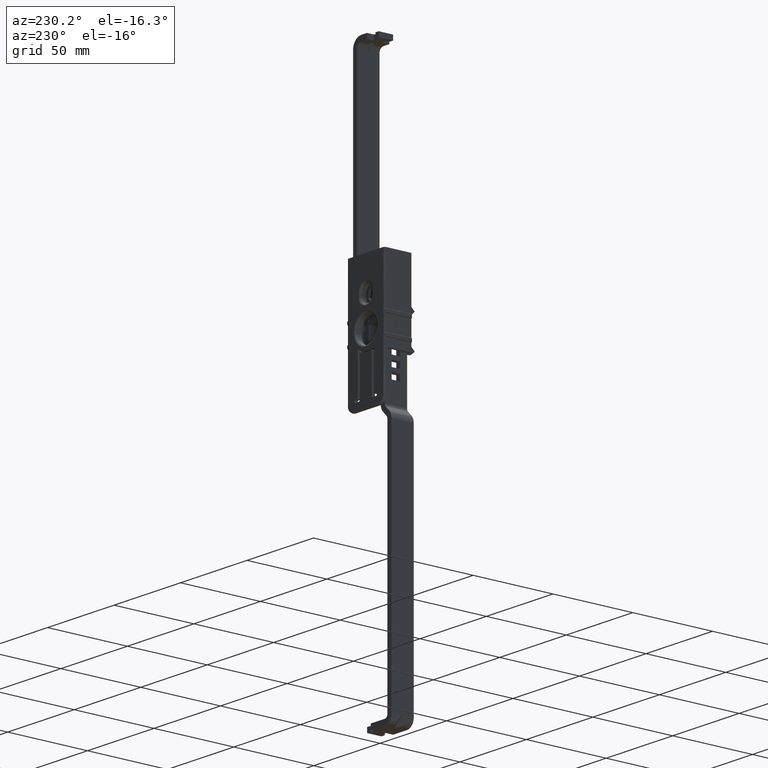
[diagram: clean part render]
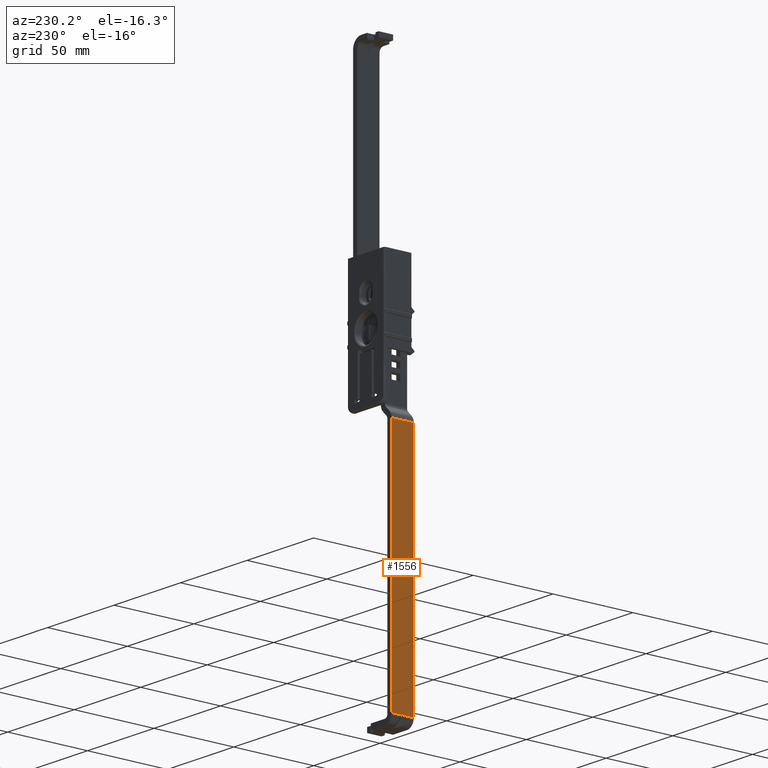
[diagram: same view with one face highlighted and labeled with its STEP entity id]
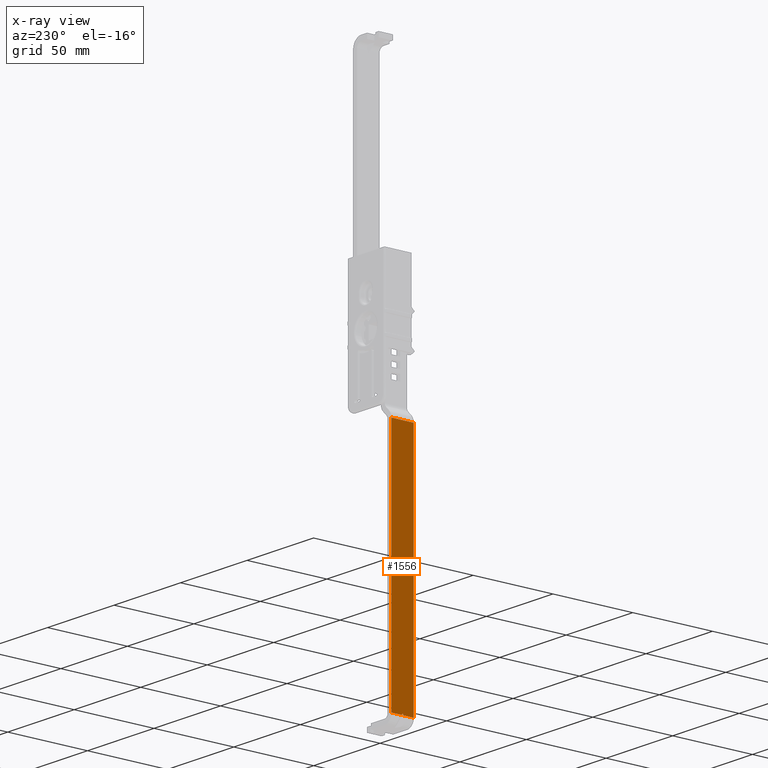
[diagram: x-ray of the same camera — body ghosted, the highlighted face saturated]
A machine part, auxiliary view. The second image highlights one B-rep face of the part: STEP entity #1556.
The next image is the same camera in x-ray: the body ghosted, the highlighted face saturated — about 0% of this face is hidden behind the body in this view.
In plain terms, the highlighted face is a freeform B-spline surface patch.
Its self-contained STEP definition (entity closure, byte-faithful):
#289=CARTESIAN_POINT('',(-16.900000421237451,0.0,-195.236172474243490));
#290=VERTEX_POINT('',#289);
#291=CARTESIAN_POINT('',(-16.899992590807550,-0.540112410842590,-196.000014601292490));
#292=VERTEX_POINT('',#291);
#293=CARTESIAN_POINT('',(-16.900000421237451,0.0,-195.236172474243490));
#294=CARTESIAN_POINT('',(-16.899992590807550,-0.540112410842590,-196.000014601292490));
#295=QUASI_UNIFORM_CURVE('',1,(#293,#294),.UNSPECIFIED.,.F.,.U.);
#296=EDGE_CURVE('',#290,#292,#295,.T.);
#335=CARTESIAN_POINT('',(-16.899992590807550,0.540112410842589,-196.000014601292490));
#336=VERTEX_POINT('',#335);
#337=CARTESIAN_POINT('',(-16.900000421237451,0.0,-195.236172474243490));
#338=CARTESIAN_POINT('',(-16.899992590807550,0.540112410842589,-196.000014601292490));
#339=QUASI_UNIFORM_CURVE('',1,(#337,#338),.UNSPECIFIED.,.F.,.U.);
#340=EDGE_CURVE('',#290,#336,#339,.T.);
#1115=CARTESIAN_POINT('',(-16.900000421237401,-7.000000332482050,-48.035538869087787));
#1116=VERTEX_POINT('',#1115);
#1130=CARTESIAN_POINT('',(-16.900000421237401,-7.000000332482050,-196.000011991122990));
#1131=VERTEX_POINT('',#1130);
#1132=CARTESIAN_POINT('',(-16.900000421237401,-7.000000332482050,-48.035538869087787));
#1133=CARTESIAN_POINT('',(-16.900000421237401,-7.000000332482050,-196.000011991122990));
#1134=QUASI_UNIFORM_CURVE('',1,(#1132,#1133),.UNSPECIFIED.,.F.,.U.);
#1135=EDGE_CURVE('',#1116,#1131,#1134,.T.);
#1170=CARTESIAN_POINT('',(-16.900000421237401,7.000000332482160,-196.000011991122990));
#1171=VERTEX_POINT('',#1170);
#1183=CARTESIAN_POINT('',(-16.900000421237401,7.000000332482160,-48.035538869087787));
#1184=VERTEX_POINT('',#1183);
#1185=CARTESIAN_POINT('',(-16.900000421237401,7.000000332482160,-48.035538869087787));
#1186=CARTESIAN_POINT('',(-16.900000421237401,7.000000332482160,-196.000011991122990));
#1187=QUASI_UNIFORM_CURVE('',1,(#1185,#1186),.UNSPECIFIED.,.F.,.U.);
#1188=EDGE_CURVE('',#1184,#1171,#1187,.T.);
#1524=CARTESIAN_POINT('',(-16.900000421237401,7.000000332482160,-196.000011991122990));
#1525=CARTESIAN_POINT('',(-16.899992590807550,0.540112410842589,-196.000014601292490));
#1526=QUASI_UNIFORM_CURVE('',1,(#1524,#1525),.UNSPECIFIED.,.F.,.U.);
#1527=EDGE_CURVE('',#1171,#336,#1526,.T.);
#1534=CARTESIAN_POINT('',(-16.900000421237401,7.699300338562406,-203.390839877332210));
#1535=CARTESIAN_POINT('',(-16.900000421237401,7.699300338562406,-40.644709624331533));
#1536=CARTESIAN_POINT('',(-16.900000421237401,-7.699300714071575,-203.390839877332210));
#1537=CARTESIAN_POINT('',(-16.900000421237401,-7.699300714071575,-40.644709624331533));
#1538=B_SPLINE_SURFACE_WITH_KNOTS('',1,1,((#1534,#1536),(#1535,#1537)),.UNSPECIFIED.,.F.,.F.,.U.,(2,2),(2,2),(0.0,162.746130253000700),(0.0,15.398601052633980),.UNSPECIFIED.);
#1539=ORIENTED_EDGE('',*,*,#296,.T.);
#1540=CARTESIAN_POINT('',(-16.899992590807550,-0.540112410842590,-196.000014601292490));
#1541=CARTESIAN_POINT('',(-16.900000421237401,-7.000000332482050,-196.000011991122990));
#1542=QUASI_UNIFORM_CURVE('',1,(#1540,#1541),.UNSPECIFIED.,.F.,.U.);
#1543=EDGE_CURVE('',#292,#1131,#1542,.T.);
#1544=ORIENTED_EDGE('',*,*,#1543,.T.);
#1545=ORIENTED_EDGE('',*,*,#1135,.F.);
#1546=CARTESIAN_POINT('',(-16.900000421237401,7.000000332482160,-48.035538869087787));
#1547=CARTESIAN_POINT('',(-16.900000421237401,-7.000000332482050,-48.035538869087787));
#1548=QUASI_UNIFORM_CURVE('',1,(#1546,#1547),.UNSPECIFIED.,.F.,.U.);
#1549=EDGE_CURVE('',#1184,#1116,#1548,.T.);
#1550=ORIENTED_EDGE('',*,*,#1549,.F.);
#1551=ORIENTED_EDGE('',*,*,#1188,.T.);
#1552=ORIENTED_EDGE('',*,*,#1527,.T.);
#1553=ORIENTED_EDGE('',*,*,#340,.F.);
#1554=EDGE_LOOP('',(#1539,#1544,#1545,#1550,#1551,#1552,#1553));
#1555=FACE_OUTER_BOUND('',#1554,.T.);
#1556=ADVANCED_FACE('',(#1555),#1538,.F.);